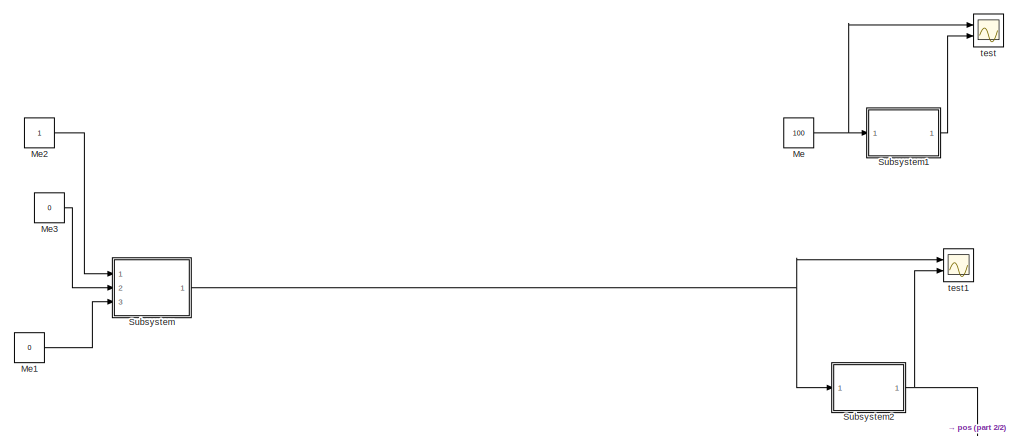
[diagram: root canvas - part 1/2, top right region]
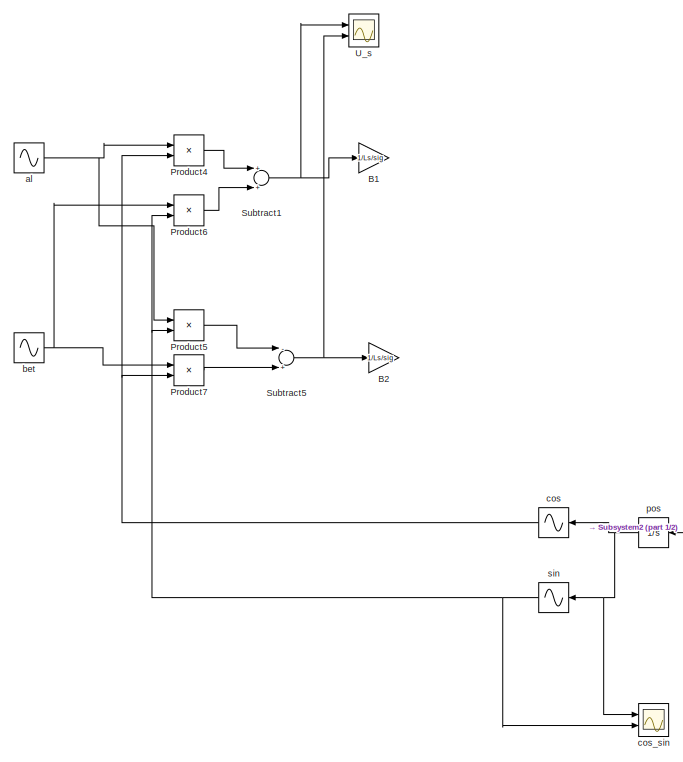
[diagram: root canvas - part 2/2, left side, full height]
MODEL slx_30263038b7fe
KIND model
CONFIG AbsTol = auto
CONFIG FixedStep = 0.0001
CONFIG MaxStep = auto
CONFIG MinStep = auto
CONFIG RelTol = 1e-3
CONFIG SampleTimeConstraint = Unconstrained
CONFIG Solver = FixedStepAuto
CONFIG SolverMode = Auto
CONFIG SolverName = FixedStepAuto
CONFIG StartTime = 0.0
CONFIG StopTime = 3
BLOCK [Gain] B1
  Gain = 1/Ls/sig
  Multiplication = Matrix(K*u)
  OutDataTypeStr = Inherit: Inherit via internal rule
  ParamDataTypeStr = Inherit: Inherit via internal rule
  SaturateOnIntegerOverflow = off
BLOCK [Gain] B2
  Gain = 1/Ls/sig
  Multiplication = Matrix(K*u)
  OutDataTypeStr = Inherit: Inherit via internal rule
  ParamDataTypeStr = Inherit: Inherit via internal rule
  SaturateOnIntegerOverflow = off
BLOCK [Constant] Me
  Value = 100
BLOCK [Constant] Me1
  Value = 0
BLOCK [Constant] Me2
BLOCK [Constant] Me3
  Value = 0
BLOCK [Product] Product4
  InputSameDT = off
  OutDataTypeStr = Inherit: Inherit via internal rule
  Ports = [2, 1]
  RndMeth = Floor
  SaturateOnIntegerOverflow = off
BLOCK [Product] Product5
  InputSameDT = off
  OutDataTypeStr = Inherit: Inherit via internal rule
  Ports = [2, 1]
  RndMeth = Floor
  SaturateOnIntegerOverflow = off
BLOCK [Product] Product6
  InputSameDT = off
  OutDataTypeStr = Inherit: Inherit via internal rule
  Ports = [2, 1]
  RndMeth = Floor
  SaturateOnIntegerOverflow = off
BLOCK [Product] Product7
  InputSameDT = off
  OutDataTypeStr = Inherit: Inherit via internal rule
  Ports = [2, 1]
  RndMeth = Floor
  SaturateOnIntegerOverflow = off
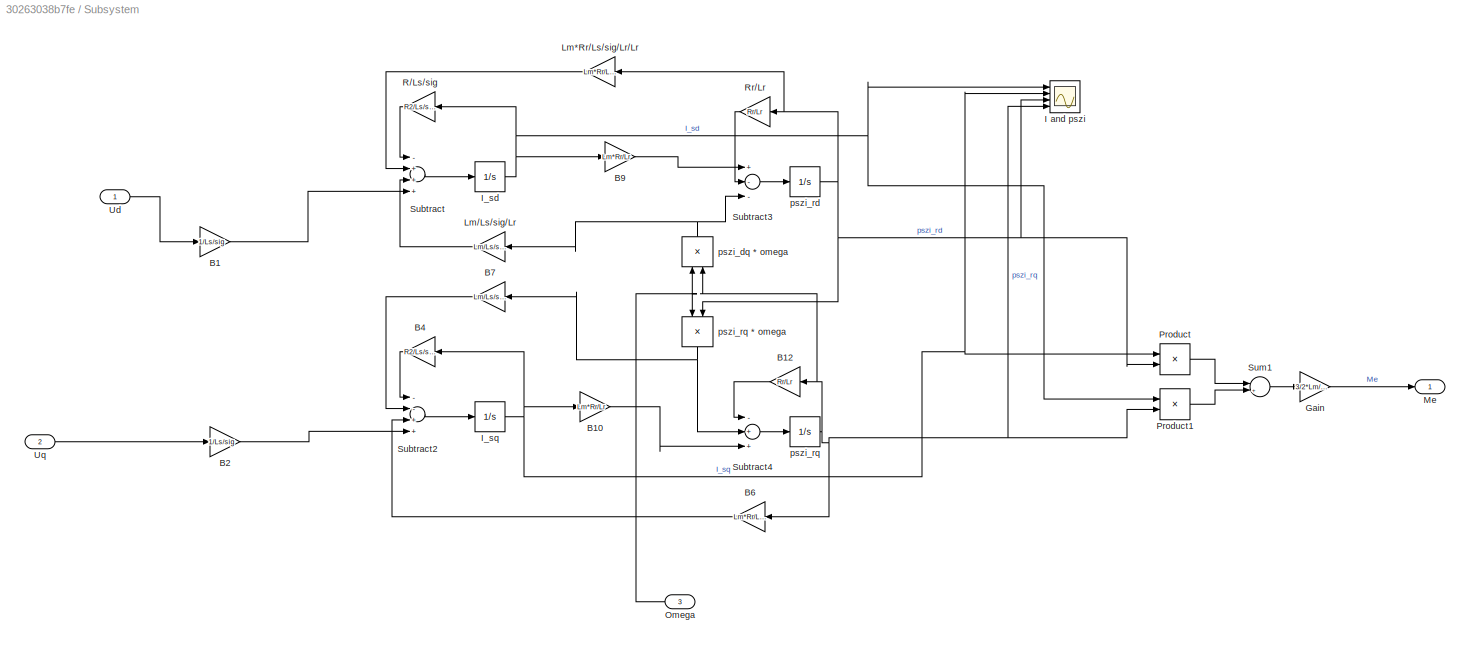
BLOCK [SubSystem] Subsystem
  Ports = [3, 1]
  RequestExecContextInheritance = off
  Variant = off
BLOCK [Gain] Subsystem/B1
  Gain = 1/Ls/sig
  Multiplication = Matrix(K*u)
  OutDataTypeStr = Inherit: Inherit via internal rule
  ParamDataTypeStr = Inherit: Inherit via internal rule
  SaturateOnIntegerOverflow = off
BLOCK [Gain] Subsystem/B10
  Gain = Lm*Rr/Lr
  Multiplication = Matrix(K*u)
  OutDataTypeStr = Inherit: Inherit via internal rule
  ParamDataTypeStr = Inherit: Inherit via internal rule
  SaturateOnIntegerOverflow = off
BLOCK [Gain] Subsystem/B12
  Gain = Rr/Lr
  Multiplication = Matrix(K*u)
  OutDataTypeStr = Inherit: Inherit via internal rule
  ParamDataTypeStr = Inherit: Inherit via internal rule
  SaturateOnIntegerOverflow = off
BLOCK [Gain] Subsystem/B2
  Gain = 1/Ls/sig
  Multiplication = Matrix(K*u)
  OutDataTypeStr = Inherit: Inherit via internal rule
  ParamDataTypeStr = Inherit: Inherit via internal rule
  SaturateOnIntegerOverflow = off
BLOCK [Gain] Subsystem/B4
  Gain = R2/Ls/sig
  Multiplication = Matrix(K*u)
  OutDataTypeStr = Inherit: Inherit via internal rule
  ParamDataTypeStr = Inherit: Inherit via internal rule
  SaturateOnIntegerOverflow = off
BLOCK [Gain] Subsystem/B6
  Gain = Lm*Rr/Ls/sig/Lr/Lr
  Multiplication = Matrix(K*u)
  OutDataTypeStr = Inherit: Inherit via internal rule
  ParamDataTypeStr = Inherit: Inherit via internal rule
  SaturateOnIntegerOverflow = off
BLOCK [Gain] Subsystem/B7
  Gain = Lm/Ls/sig/Lr
  Multiplication = Matrix(K*u)
  OutDataTypeStr = Inherit: Inherit via internal rule
  ParamDataTypeStr = Inherit: Inherit via internal rule
  SaturateOnIntegerOverflow = off
BLOCK [Gain] Subsystem/B9
  Gain = Lm*Rr/Lr
  Multiplication = Matrix(K*u)
  OutDataTypeStr = Inherit: Inherit via internal rule
  ParamDataTypeStr = Inherit: Inherit via internal rule
  SaturateOnIntegerOverflow = off
BLOCK [Gain] Subsystem/Gain
  Gain = 3/2*Lm/Lr
  OutDataTypeStr = Inherit: Inherit via internal rule
  ParamDataTypeStr = Inherit: Inherit via internal rule
  SaturateOnIntegerOverflow = off
BLOCK [Scope] Subsystem/I and pszi
  NumInputPorts = 4
  Ports = [4]
  ScopeSpecificationString = Simulink.scopes.TimeScopeBlockCfg('CurrentConfiguration', extmgr.ConfigurationSet(extmgr.Configuration('Core','General UI',true),extmgr.Configuration('Core','Source UI',true),extmgr.Configuration('Sources','WiredSimulink',true),extmgr.Configuration('Visuals','Time Domain',true,'SerializedDisplays',{struct('MinYLimReal','-3205.47383','MaxYLimReal','356.16376','YLabelReal','','MinYLimMag','  0.00000...<+1443ch>
BLOCK [Integrator] Subsystem/I_sd
  Ports = [1, 1]
BLOCK [Integrator] Subsystem/I_sq
  Ports = [1, 1]
BLOCK [Gain] Subsystem/Lm*Rr//Ls//sig//Lr//Lr
  Gain = Lm*Rr/Ls/sig/Lr/Lr
  Multiplication = Matrix(K*u)
  OutDataTypeStr = Inherit: Inherit via internal rule
  ParamDataTypeStr = Inherit: Inherit via internal rule
  SaturateOnIntegerOverflow = off
BLOCK [Gain] Subsystem/Lm//Ls//sig//Lr
  Gain = Lm/Ls/sig/Lr
  Multiplication = Matrix(K*u)
  OutDataTypeStr = Inherit: Inherit via internal rule
  ParamDataTypeStr = Inherit: Inherit via internal rule
  SaturateOnIntegerOverflow = off
BLOCK [Outport] Subsystem/Me
  IconDisplay = Port number
BLOCK [Inport] Subsystem/Omega
  IconDisplay = Port number
  Port = 3
BLOCK [Product] Subsystem/Product
  InputSameDT = off
  OutDataTypeStr = Inherit: Inherit via internal rule
  Ports = [2, 1]
  RndMeth = Floor
  SaturateOnIntegerOverflow = off
BLOCK [Product] Subsystem/Product1
  InputSameDT = off
  OutDataTypeStr = Inherit: Inherit via internal rule
  Ports = [2, 1]
  RndMeth = Floor
  SaturateOnIntegerOverflow = off
BLOCK [Gain] Subsystem/R//Ls//sig
  Gain = R2/Ls/sig
  Multiplication = Matrix(K*u)
  OutDataTypeStr = Inherit: Inherit via internal rule
  ParamDataTypeStr = Inherit: Inherit via internal rule
  SaturateOnIntegerOverflow = off
BLOCK [Gain] Subsystem/Rr//Lr
  Gain = Rr/Lr
  Multiplication = Matrix(K*u)
  OutDataTypeStr = Inherit: Inherit via internal rule
  ParamDataTypeStr = Inherit: Inherit via internal rule
  SaturateOnIntegerOverflow = off
BLOCK [Sum] Subsystem/Subtract
  InputSameDT = off
  Inputs = -+++
  OutDataTypeStr = Inherit: Inherit via internal rule
  Ports = [4, 1]
  SaturateOnIntegerOverflow = off
BLOCK [Sum] Subsystem/Subtract2
  InputSameDT = off
  Inputs = --++
  OutDataTypeStr = Inherit: Inherit via internal rule
  Ports = [4, 1]
  SaturateOnIntegerOverflow = off
BLOCK [Sum] Subsystem/Subtract3
  InputSameDT = off
  Inputs = +--
  OutDataTypeStr = Inherit: Inherit via internal rule
  Ports = [3, 1]
  SaturateOnIntegerOverflow = off
BLOCK [Sum] Subsystem/Subtract4
  InputSameDT = off
  Inputs = -++
  OutDataTypeStr = Inherit: Inherit via internal rule
  Ports = [3, 1]
  SaturateOnIntegerOverflow = off
BLOCK [Sum] Subsystem/Sum1
  IconShape = round
  InputSameDT = off
  Inputs = |+-|
  OutDataTypeStr = Inherit: Inherit via internal rule
  Ports = [2, 1]
  SaturateOnIntegerOverflow = off
BLOCK [Inport] Subsystem/Ud
  IconDisplay = Port number
BLOCK [Inport] Subsystem/Uq
  IconDisplay = Port number
  Port = 2
BLOCK [Product] Subsystem/pszi_dq * omega
  InputSameDT = off
  OutDataTypeStr = Inherit: Inherit via internal rule
  Ports = [2, 1]
  RndMeth = Floor
  SaturateOnIntegerOverflow = off
BLOCK [Integrator] Subsystem/pszi_rd
  Ports = [1, 1]
BLOCK [Integrator] Subsystem/pszi_rq 
  Ports = [1, 1]
BLOCK [Product] Subsystem/pszi_rq * omega
  InputSameDT = off
  OutDataTypeStr = Inherit: Inherit via internal rule
  Ports = [2, 1]
  RndMeth = Floor
  SaturateOnIntegerOverflow = off
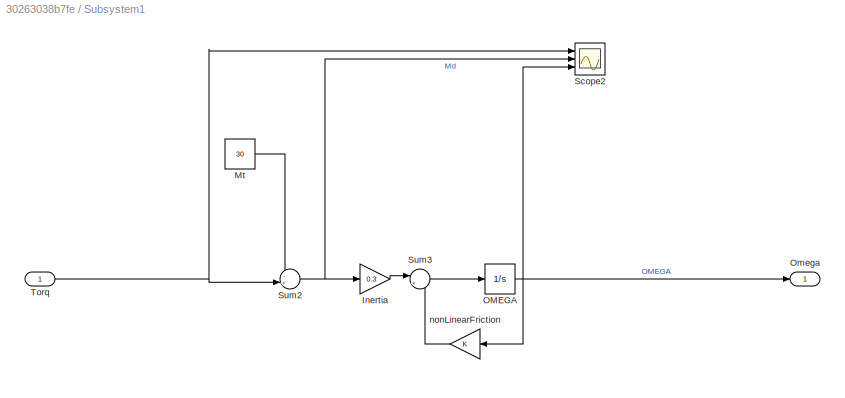
BLOCK [SubSystem] Subsystem1
  Ports = [1, 1]
  RequestExecContextInheritance = off
  Variant = off
BLOCK [Gain] Subsystem1/Inertia
  Gain = 0.3
  OutDataTypeStr = Inherit: Inherit via internal rule
  ParamDataTypeStr = Inherit: Inherit via internal rule
  SaturateOnIntegerOverflow = off
BLOCK [Constant] Subsystem1/Mt
  Value = 30
BLOCK [Integrator] Subsystem1/OMEGA
  Ports = [1, 1]
BLOCK [Outport] Subsystem1/Omega
  IconDisplay = Port number
BLOCK [Scope] Subsystem1/Scope2
  NumInputPorts = 3
  Ports = [3]
  ScopeSpecificationString = Simulink.scopes.TimeScopeBlockCfg('CurrentConfiguration', extmgr.ConfigurationSet(extmgr.Configuration('Core','General UI',true),extmgr.Configuration('Core','Source UI',true),extmgr.Configuration('Sources','WiredSimulink',true,'DataLoggingVariableName','ScopeData2'),extmgr.Configuration('Visuals','Time Domain',true,'SerializedDisplays',{struct('MinYLimReal','90.00000','MaxYLimReal','110.00000','YL...<+2795ch>
BLOCK [Sum] Subsystem1/Sum2
  IconShape = round
  InputSameDT = off
  Inputs = -+|
  OutDataTypeStr = Inherit: Inherit via internal rule
  Ports = [2, 1]
  SaturateOnIntegerOverflow = off
BLOCK [Sum] Subsystem1/Sum3
  IconShape = round
  InputSameDT = off
  Inputs = |+-
  OutDataTypeStr = Inherit: Inherit via internal rule
  Ports = [2, 1]
  SaturateOnIntegerOverflow = off
BLOCK [Inport] Subsystem1/Torq 
  IconDisplay = Port number
BLOCK [Gain] Subsystem1/nonLinearFriction
  OutDataTypeStr = Inherit: Inherit via internal rule
  ParamDataTypeStr = Inherit: Inherit via internal rule
  SaturateOnIntegerOverflow = off
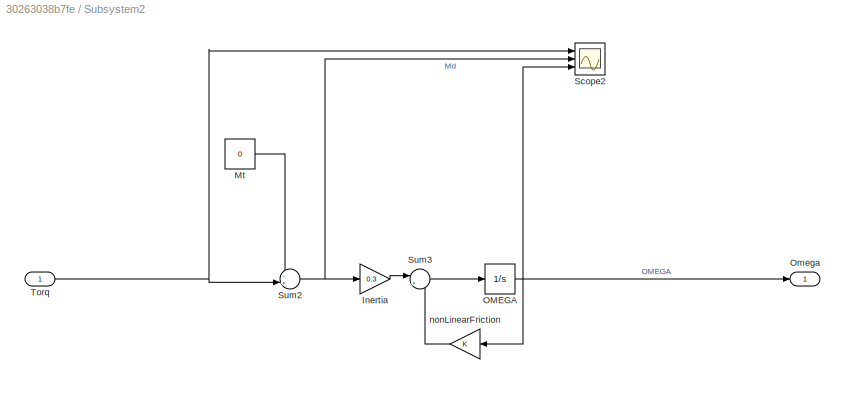
BLOCK [SubSystem] Subsystem2
  Ports = [1, 1]
  RequestExecContextInheritance = off
  Variant = off
BLOCK [Gain] Subsystem2/Inertia
  Gain = 0.3
  OutDataTypeStr = Inherit: Inherit via internal rule
  ParamDataTypeStr = Inherit: Inherit via internal rule
  SaturateOnIntegerOverflow = off
BLOCK [Constant] Subsystem2/Mt
  Value = 0
BLOCK [Integrator] Subsystem2/OMEGA
  Ports = [1, 1]
BLOCK [Outport] Subsystem2/Omega
  IconDisplay = Port number
BLOCK [Scope] Subsystem2/Scope2
  NumInputPorts = 3
  Ports = [3]
  ScopeSpecificationString = Simulink.scopes.TimeScopeBlockCfg('CurrentConfiguration', extmgr.ConfigurationSet(extmgr.Configuration('Core','General UI',true),extmgr.Configuration('Core','Source UI',true),extmgr.Configuration('Sources','WiredSimulink',true,'DataLoggingVariableName','ScopeData2'),extmgr.Configuration('Visuals','Time Domain',true,'SerializedDisplays',{struct('MinYLimReal','90.00000','MaxYLimReal','110.00000','YL...<+2795ch>
BLOCK [Sum] Subsystem2/Sum2
  IconShape = round
  InputSameDT = off
  Inputs = -+|
  OutDataTypeStr = Inherit: Inherit via internal rule
  Ports = [2, 1]
  SaturateOnIntegerOverflow = off
BLOCK [Sum] Subsystem2/Sum3
  IconShape = round
  InputSameDT = off
  Inputs = |+-
  OutDataTypeStr = Inherit: Inherit via internal rule
  Ports = [2, 1]
  SaturateOnIntegerOverflow = off
BLOCK [Inport] Subsystem2/Torq 
  IconDisplay = Port number
BLOCK [Gain] Subsystem2/nonLinearFriction
  OutDataTypeStr = Inherit: Inherit via internal rule
  ParamDataTypeStr = Inherit: Inherit via internal rule
  SaturateOnIntegerOverflow = off
BLOCK [Sum] Subtract1
  InputSameDT = off
  OutDataTypeStr = Inherit: Inherit via internal rule
  Ports = [2, 1]
  SaturateOnIntegerOverflow = off
BLOCK [Sum] Subtract5
  InputSameDT = off
  Inputs = -+
  OutDataTypeStr = Inherit: Inherit via internal rule
  Ports = [2, 1]
  SaturateOnIntegerOverflow = off
BLOCK [Scope] U_s
  NumInputPorts = 2
  Ports = [2]
  ScopeSpecificationString = Simulink.scopes.TimeScopeBlockCfg('CurrentConfiguration', extmgr.ConfigurationSet(extmgr.Configuration('Core','General UI',true),extmgr.Configuration('Core','Source UI',true),extmgr.Configuration('Sources','WiredSimulink',true,'DataLoggingVariableName','ScopeData1'),extmgr.Configuration('Visuals','Time Domain',true,'SerializedDisplays',{struct('MinYLimReal','-100.00498','MaxYLimReal','100.00498','...<+1441ch>
BLOCK [Sin] al
  Amplitude = 80
  Frequency = 314
  Phase = 1.5
  Ports = [0, 1]
  SampleTime = 0
BLOCK [Sin] bet
  Amplitude = 80
  Frequency = 314
  Ports = [0, 1]
  SampleTime = 0
BLOCK [Sin] cos
  Phase = +pi/2
  Ports = [1, 1]
  SampleTime = 0
  TimeSource = Use external signal
BLOCK [Scope] cos_sin
  NumInputPorts = 2
  Ports = [2]
  ScopeSpecificationString = Simulink.scopes.TimeScopeBlockCfg('CurrentConfiguration', extmgr.ConfigurationSet(extmgr.Configuration('Core','General UI',true),extmgr.Configuration('Core','Source UI',true),extmgr.Configuration('Sources','WiredSimulink',true,'DataLoggingVariableName','ScopeData3'),extmgr.Configuration('Visuals','Time Domain',true,'SerializedDisplays',{struct('MinYLimReal','-0.01395','MaxYLimReal','0.0015','YLabe...<+1413ch>
BLOCK [Integrator] pos
  Ports = [1, 1]
BLOCK [Sin] sin
  Ports = [1, 1]
  SampleTime = 0
  TimeSource = Use external signal
BLOCK [Scope] test
  NumInputPorts = 2
  Ports = [2]
  ScopeSpecificationString = Simulink.scopes.TimeScopeBlockCfg('CurrentConfiguration', extmgr.ConfigurationSet(extmgr.Configuration('Core','General UI',true),extmgr.Configuration('Core','Source UI',true),extmgr.Configuration('Sources','WiredSimulink',true,'DataLoggingVariableName','ScopeData4'),extmgr.Configuration('Visuals','Time Domain',true,'SerializedDisplays',{struct('MinYLimReal','-12.5','MaxYLimReal','112.5','YLabelRea...<+1407ch>
BLOCK [Scope] test1
  NumInputPorts = 2
  Ports = [2]
  ScopeSpecificationString = Simulink.scopes.TimeScopeBlockCfg('CurrentConfiguration', extmgr.ConfigurationSet(extmgr.Configuration('Core','General UI',true),extmgr.Configuration('Core','Source UI',true),extmgr.Configuration('Sources','WiredSimulink',true,'DataLoggingVariableName','ScopeData5'),extmgr.Configuration('Visuals','Time Domain',true,'SerializedDisplays',{struct('MinYLimReal','-0.00404','MaxYLimReal','0.00244','YLab...<+1428ch>
LINE Me1:1 -> Subsystem:3
LINE Me2:1 -> Subsystem:1
LINE Me3:1 -> Subsystem:2
NET Me:1 -> Subsystem1:1, test:1
LINE Product4:1 -> Subtract1:1
LINE Product5:1 -> Subtract5:1
LINE Product6:1 -> Subtract1:2
LINE Product7:1 -> Subtract5:2
LINE Subsystem/B10:1 -> Subsystem/Subtract4:3
LINE Subsystem/B12:1 -> Subsystem/Subtract4:1
LINE Subsystem/B1:1 -> Subsystem/Subtract:4
LINE Subsystem/B2:1 -> Subsystem/Subtract2:4
LINE Subsystem/B4:1 -> Subsystem/Subtract2:1
LINE Subsystem/B6:1 -> Subsystem/Subtract2:3
LINE Subsystem/B7:1 -> Subsystem/Subtract2:2
LINE Subsystem/B9:1 -> Subsystem/Subtract3:1
LINE Subsystem/Gain:1 -> Subsystem/Me:1
NET Subsystem/I_sd:1 -> Subsystem/B9:1, Subsystem/I and pszi:1, Subsystem/Product1:1, Subsystem/R//Ls//sig:1
NET Subsystem/I_sq:1 -> Subsystem/B10:1, Subsystem/B4:1, Subsystem/I and pszi:2, Subsystem/Product:1
LINE Subsystem/Lm*Rr//Ls//sig//Lr//Lr:1 -> Subsystem/Subtract:2
LINE Subsystem/Lm//Ls//sig//Lr:1 -> Subsystem/Subtract:3
NET Subsystem/Omega:1 -> Subsystem/pszi_dq * omega:1, Subsystem/pszi_rq * omega:1
LINE Subsystem/Product1:1 -> Subsystem/Sum1:2
LINE Subsystem/Product:1 -> Subsystem/Sum1:1
LINE Subsystem/R//Ls//sig:1 -> Subsystem/Subtract:1
LINE Subsystem/Rr//Lr:1 -> Subsystem/Subtract3:2
LINE Subsystem/Subtract2:1 -> Subsystem/I_sq:1
LINE Subsystem/Subtract3:1 -> Subsystem/pszi_rd:1
LINE Subsystem/Subtract4:1 -> Subsystem/pszi_rq :1
LINE Subsystem/Subtract:1 -> Subsystem/I_sd:1
LINE Subsystem/Sum1:1 -> Subsystem/Gain:1
LINE Subsystem/Ud:1 -> Subsystem/B1:1
LINE Subsystem/Uq:1 -> Subsystem/B2:1
NET Subsystem/pszi_dq * omega:1 -> Subsystem/Lm//Ls//sig//Lr:1, Subsystem/Subtract3:3
NET Subsystem/pszi_rd:1 -> Subsystem/I and pszi:3, Subsystem/Lm*Rr//Ls//sig//Lr//Lr:1, Subsystem/Product:2, Subsystem/Rr//Lr:1, Subsystem/pszi_rq * omega:2
NET Subsystem/pszi_rq * omega:1 -> Subsystem/B7:1, Subsystem/Subtract4:2
NET Subsystem/pszi_rq :1 -> Subsystem/B12:1, Subsystem/B6:1, Subsystem/I and pszi:4, Subsystem/Product1:2, Subsystem/pszi_dq * omega:2
LINE Subsystem1/Inertia:1 -> Subsystem1/Sum3:1
LINE Subsystem1/Mt:1 -> Subsystem1/Sum2:1
NET Subsystem1/OMEGA:1 -> Subsystem1/Omega:1, Subsystem1/Scope2:3, Subsystem1/nonLinearFriction:1
NET Subsystem1/Sum2:1 -> Subsystem1/Inertia:1, Subsystem1/Scope2:2
LINE Subsystem1/Sum3:1 -> Subsystem1/OMEGA:1
NET Subsystem1/Torq :1 -> Subsystem1/Scope2:1, Subsystem1/Sum2:2
LINE Subsystem1/nonLinearFriction:1 -> Subsystem1/Sum3:2
LINE Subsystem1:1 -> test:2
LINE Subsystem2/Inertia:1 -> Subsystem2/Sum3:1
LINE Subsystem2/Mt:1 -> Subsystem2/Sum2:1
NET Subsystem2/OMEGA:1 -> Subsystem2/Omega:1, Subsystem2/Scope2:3, Subsystem2/nonLinearFriction:1
NET Subsystem2/Sum2:1 -> Subsystem2/Inertia:1, Subsystem2/Scope2:2
LINE Subsystem2/Sum3:1 -> Subsystem2/OMEGA:1
NET Subsystem2/Torq :1 -> Subsystem2/Scope2:1, Subsystem2/Sum2:2
LINE Subsystem2/nonLinearFriction:1 -> Subsystem2/Sum3:2
NET Subsystem2:1 -> pos:1, test1:2
NET Subsystem:1 -> Subsystem2:1, test1:1
NET Subtract1:1 -> B1:1, U_s:1
NET Subtract5:1 -> B2:1, U_s:2
NET al:1 -> Product4:1, Product5:1
NET bet:1 -> Product6:1, Product7:1
NET cos:1 -> Product4:2, Product7:2
NET pos:1 -> cos:1, cos_sin:1, sin:1
NET sin:1 -> Product5:2, Product6:2, cos_sin:2
note: NET lines group one-source signal fan-out (src -> all destinations, sorted); 1:1 wires keep LINE
